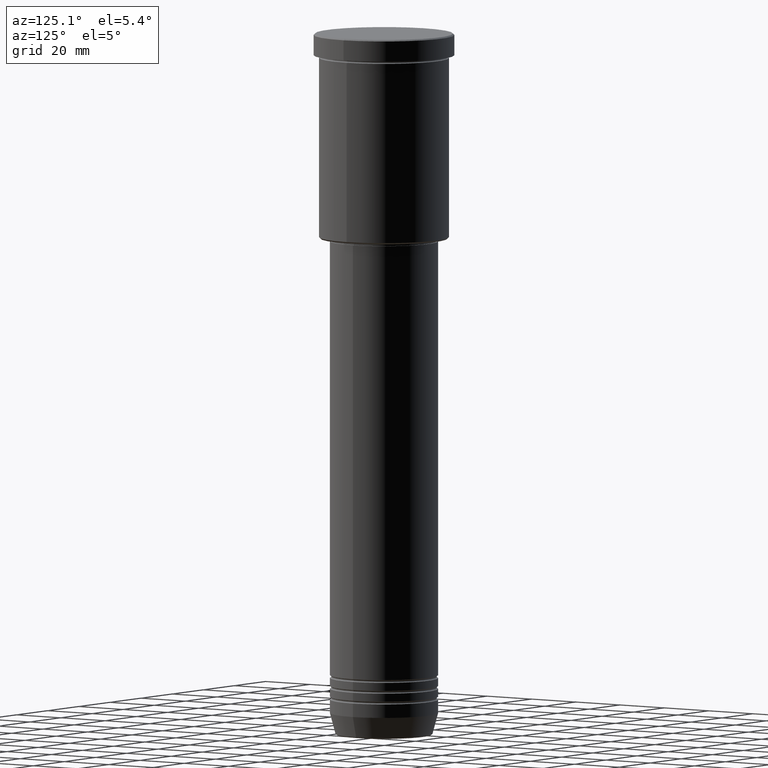
[diagram: clean part render]
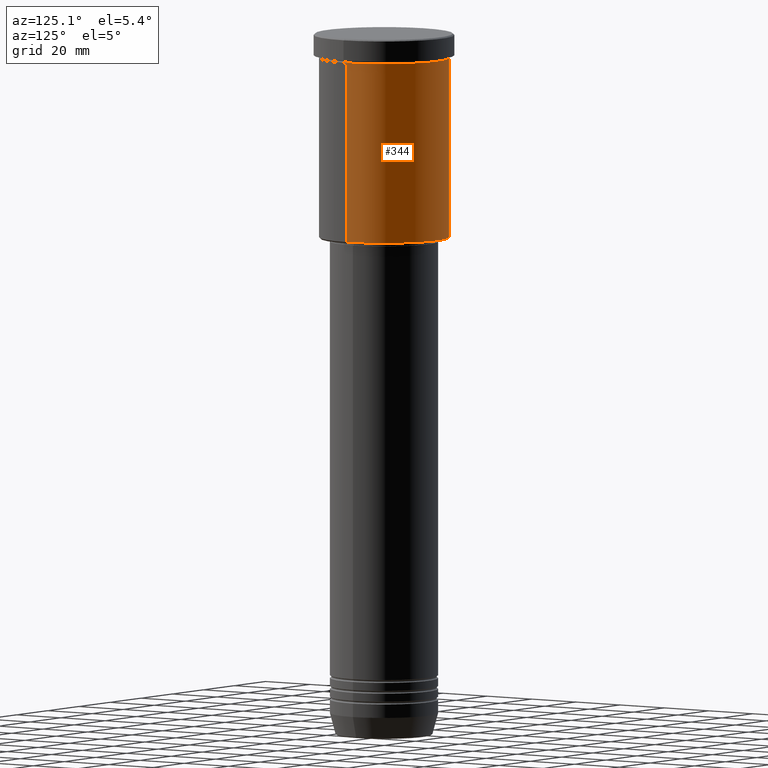
[diagram: same view with one face highlighted and labeled with its STEP entity id]
A machine part, auxiliary view. The second image highlights one B-rep face of the part: STEP entity #344.
In plain terms, the highlighted cylindrical surface (partial cylindrical patch) has radius 24 mm, axis along (-0, -0, 1).
Its self-contained STEP definition (entity closure, byte-faithful):
#9 = VECTOR ( 'NONE', #893, 1000.000000000000000 ) ;
#61 = VERTEX_POINT ( 'NONE', #359 ) ;
#111 = EDGE_CURVE ( 'NONE', #865, #128, #789, .T. ) ;
#128 = VERTEX_POINT ( 'NONE', #803 ) ;
#146 = ORIENTED_EDGE ( 'NONE', *, *, #1178, .T. ) ;
#163 = CARTESIAN_POINT ( 'NONE',  ( -24.00000000000000000, 2.939152317953647894E-15, -75.49999999999991473 ) ) ;
#221 = EDGE_LOOP ( 'NONE', ( #315, #146, #667, #554 ) ) ;
#241 = CARTESIAN_POINT ( 'NONE',  ( 0.000000000000000000, 0.000000000000000000, -8.999999999999994671 ) ) ;
#245 = CARTESIAN_POINT ( 'NONE',  ( 24.00000000000000000, 0.000000000000000000, 0.000000000000000000 ) ) ;
#313 = LINE ( 'NONE', #848, #388 ) ;
#315 = ORIENTED_EDGE ( 'NONE', *, *, #612, .T. ) ;
#344 = ADVANCED_FACE ( 'NONE', ( #1157 ), #703, .T. ) ;
#359 = CARTESIAN_POINT ( 'NONE',  ( 24.00000000000000000, 0.000000000000000000, -75.49999999999991473 ) ) ;
#364 = EDGE_CURVE ( 'NONE', #61, #865, #881, .T. ) ;
#372 = AXIS2_PLACEMENT_3D ( 'NONE', #404, #957, #498 ) ;
#388 = VECTOR ( 'NONE', #1032, 1000.000000000000000 ) ;
#404 = CARTESIAN_POINT ( 'NONE',  ( 0.000000000000000000, 0.000000000000000000, -75.49999999999991473 ) ) ;
#426 = AXIS2_PLACEMENT_3D ( 'NONE', #241, #1142, #438 ) ;
#438 = DIRECTION ( 'NONE',  ( 1.000000000000000000, 0.000000000000000000, 0.000000000000000000 ) ) ;
#498 = DIRECTION ( 'NONE',  ( -1.000000000000000000, 0.000000000000000000, 0.000000000000000000 ) ) ;
#554 = ORIENTED_EDGE ( 'NONE', *, *, #364, .F. ) ;
#612 = EDGE_CURVE ( 'NONE', #61, #901, #1161, .T. ) ;
#628 = DIRECTION ( 'NONE',  ( 1.000000000000000000, 0.000000000000000000, 0.000000000000000000 ) ) ;
#667 = ORIENTED_EDGE ( 'NONE', *, *, #111, .F. ) ;
#703 = CYLINDRICAL_SURFACE ( 'NONE', #871, 24.00000000000000000 ) ;
#789 = CIRCLE ( 'NONE', #426, 24.00000000000000000 ) ;
#803 = CARTESIAN_POINT ( 'NONE',  ( -24.00000000000000000, 2.939152317953647894E-15, -8.999999999999994671 ) ) ;
#848 = CARTESIAN_POINT ( 'NONE',  ( -24.00000000000000000, 2.939152317953647894E-15, 0.000000000000000000 ) ) ;
#865 = VERTEX_POINT ( 'NONE', #1075 ) ;
#871 = AXIS2_PLACEMENT_3D ( 'NONE', #1168, #1083, #628 ) ;
#881 = LINE ( 'NONE', #245, #9 ) ;
#893 = DIRECTION ( 'NONE',  ( -0.000000000000000000, -0.000000000000000000, 1.000000000000000000 ) ) ;
#901 = VERTEX_POINT ( 'NONE', #163 ) ;
#957 = DIRECTION ( 'NONE',  ( -0.000000000000000000, -0.000000000000000000, 1.000000000000000000 ) ) ;
#1032 = DIRECTION ( 'NONE',  ( -0.000000000000000000, -0.000000000000000000, 1.000000000000000000 ) ) ;
#1075 = CARTESIAN_POINT ( 'NONE',  ( 24.00000000000000000, 0.000000000000000000, -8.999999999999994671 ) ) ;
#1083 = DIRECTION ( 'NONE',  ( -0.000000000000000000, -0.000000000000000000, 1.000000000000000000 ) ) ;
#1142 = DIRECTION ( 'NONE',  ( -0.000000000000000000, -0.000000000000000000, 1.000000000000000000 ) ) ;
#1157 = FACE_OUTER_BOUND ( 'NONE', #221, .T. ) ;
#1161 = CIRCLE ( 'NONE', #372, 24.00000000000000000 ) ;
#1168 = CARTESIAN_POINT ( 'NONE',  ( 0.000000000000000000, 0.000000000000000000, 0.000000000000000000 ) ) ;
#1178 = EDGE_CURVE ( 'NONE', #901, #128, #313, .T. ) ;